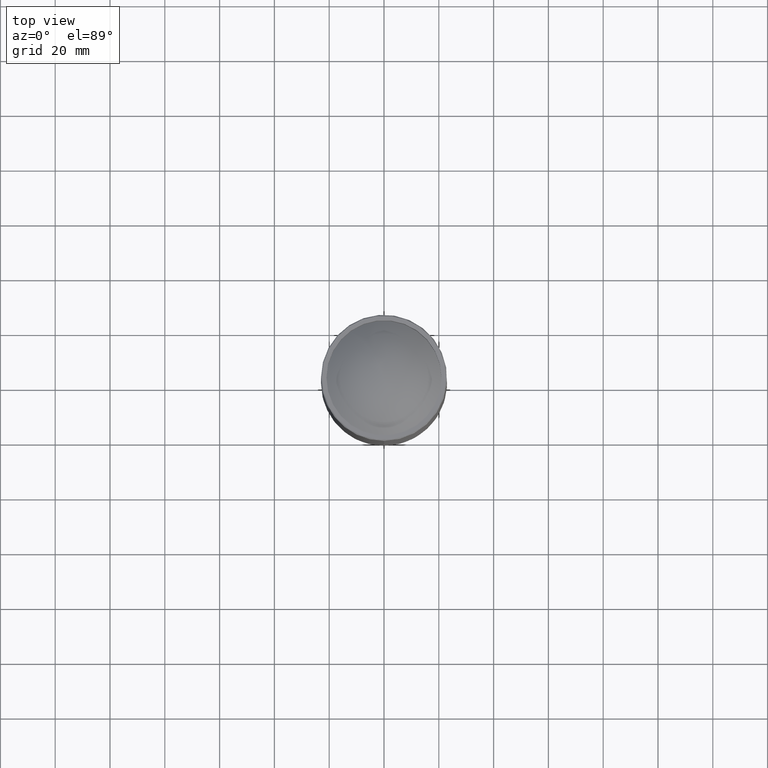
[diagram: clean part render]
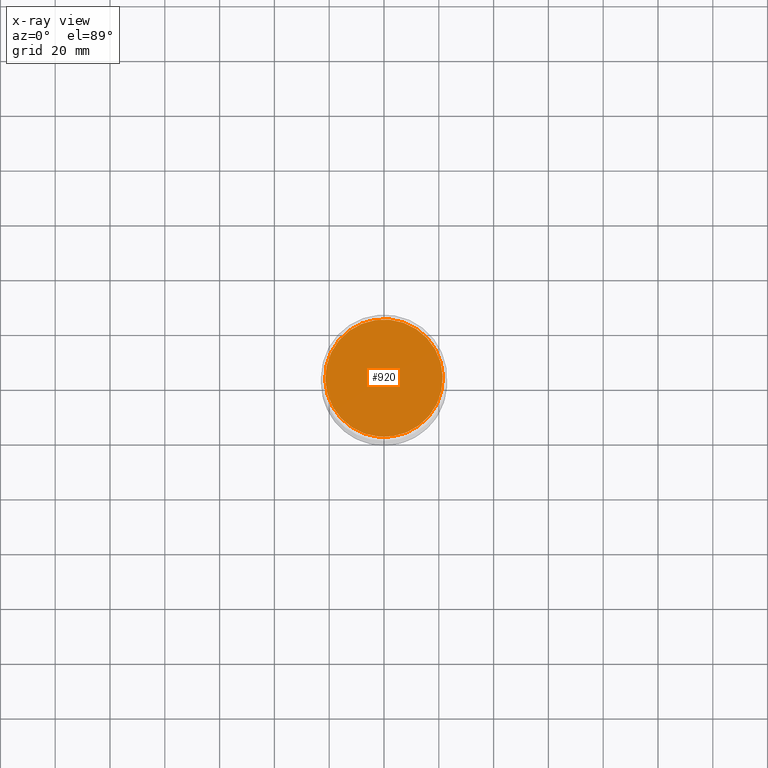
[diagram: x-ray — body ghosted, one internal face saturated and labeled with its STEP entity id]
A machine part, top view, then the same camera in x-ray: the body is ghosted and one INTERNAL B-rep face — a face not visible from any outside direction — is saturated and labeled: STEP entity #920.
In plain terms, the highlighted planar face has unit normal (-0, 0, 1).
Its self-contained STEP definition (entity closure, byte-faithful):
#58 = DIRECTION ( 'NONE',  ( 0.3830490080632379390, -0.9237280213470682178, 0.000000000000000000 ) ) ;
#83 = CIRCLE ( 'NONE', #826, 21.45211006975307555 ) ;
#138 = DIRECTION ( 'NONE',  ( -1.232595164407830946E-32, -1.318609258053555361E-16, -1.000000000000000000 ) ) ;
#166 = FACE_OUTER_BOUND ( 'NONE', #1199, .T. ) ;
#317 = EDGE_CURVE ( 'NONE', #685, #685, #83, .T. ) ;
#546 = AXIS2_PLACEMENT_3D ( 'NONE', #655, #1279, #1081 ) ;
#655 = CARTESIAN_POINT ( 'NONE',  ( -7.311375404722625149, -63.84507486142585009, -403.0000000000000000 ) ) ;
#685 = VERTEX_POINT ( 'NONE', #1215 ) ;
#746 = ORIENTED_EDGE ( 'NONE', *, *, #317, .T. ) ;
#826 = AXIS2_PLACEMENT_3D ( 'NONE', #1284, #138, #58 ) ;
#867 = PLANE ( 'NONE',  #546 ) ;
#920 = ADVANCED_FACE ( 'NONE', ( #166 ), #867, .F. ) ;
#1081 = DIRECTION ( 'NONE',  ( 0.3830490080632378835, -0.9237280213470681067, 1.218036320871736945E-16 ) ) ;
#1199 = EDGE_LOOP ( 'NONE', ( #746 ) ) ;
#1215 = CARTESIAN_POINT ( 'NONE',  ( 8.217209483082285715, -19.81591518845250022, -403.0000000000000000 ) ) ;
#1279 = DIRECTION ( 'NONE',  ( -1.848892746611746419E-32, 1.318609258053556101E-16, 1.000000000000000000 ) ) ;
#1284 = CARTESIAN_POINT ( 'NONE',  ( -2.775557561562891351E-14, 2.341876692568689577E-14, -403.0000000000000000 ) ) ;